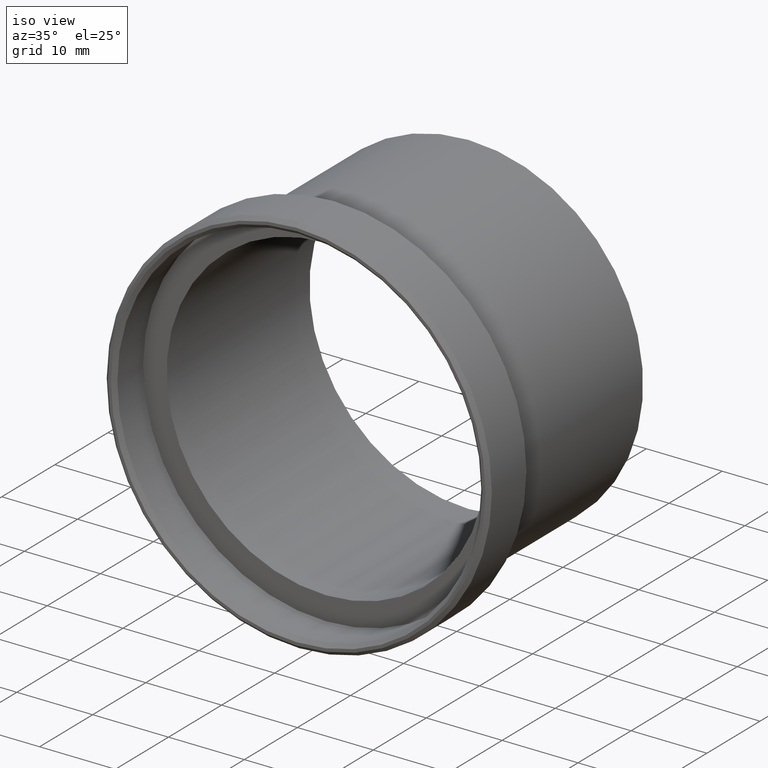
[diagram: clean part render]
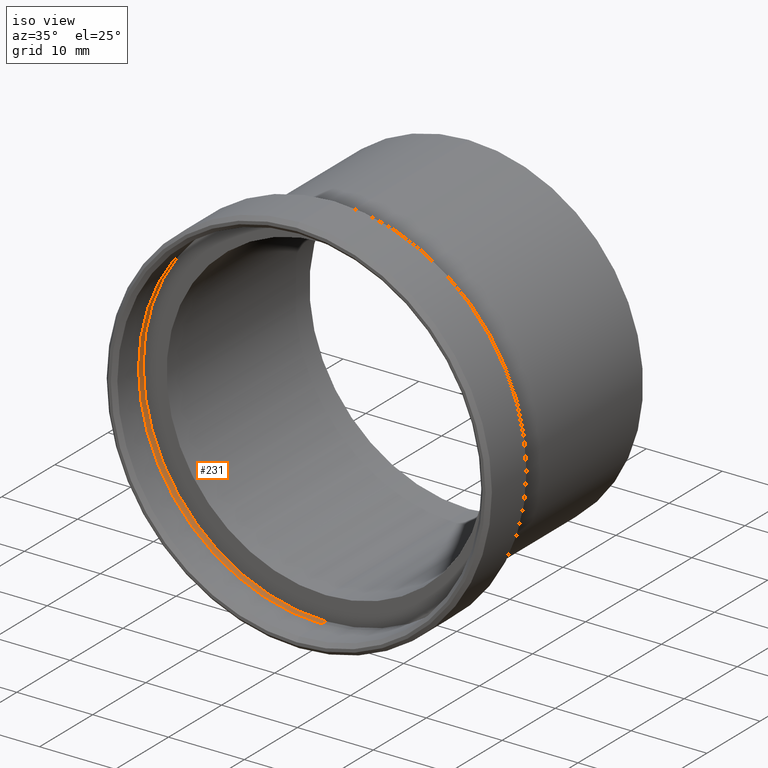
[diagram: same view with one face highlighted and labeled with its STEP entity id]
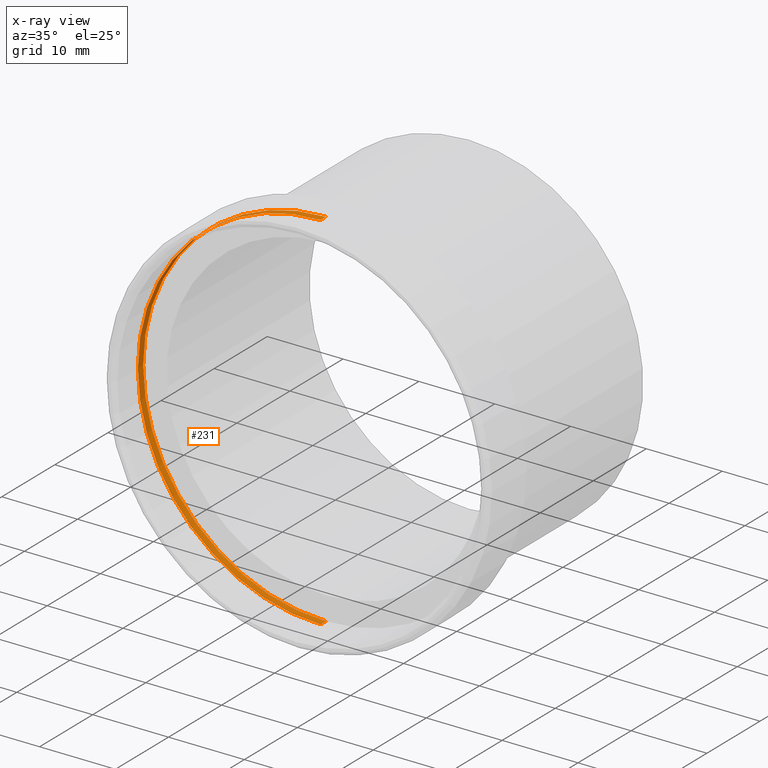
[diagram: x-ray of the same camera — body ghosted, the highlighted face saturated]
A machine part, iso view. The second image highlights one B-rep face of the part: STEP entity #231.
The next image is the same camera in x-ray: the body ghosted, the highlighted face saturated — about 0% of this face is hidden behind the body in this view.
In plain terms, the highlighted cylindrical surface (partial cylindrical patch) has radius 24.1 mm, axis along (-0, 1, -0).
Its self-contained STEP definition (entity closure, byte-faithful):
#59 = DIRECTION ( 'NONE',  ( 0.0000000000000000000, 0.0000000000000000000, 1.000000000000000000 ) ) ;
#69 = DIRECTION ( 'NONE',  ( 0.0000000000000000000, 0.0000000000000000000, 1.000000000000000000 ) ) ;
#71 = EDGE_CURVE ( 'NONE', #516, #353, #651, .T. ) ;
#79 = VECTOR ( 'NONE', #602, 1000.000000000000000 ) ;
#106 = ORIENTED_EDGE ( 'NONE', *, *, #627, .T. ) ;
#126 = DIRECTION ( 'NONE',  ( -0.0000000000000000000, 1.000000000000000000, -0.0000000000000000000 ) ) ;
#134 = DIRECTION ( 'NONE',  ( -0.0000000000000000000, 1.000000000000000000, -0.0000000000000000000 ) ) ;
#146 = DIRECTION ( 'NONE',  ( -0.0000000000000000000, 1.000000000000000000, -0.0000000000000000000 ) ) ;
#154 = CARTESIAN_POINT ( 'NONE',  ( 2.951398785945122000E-015, 44.59859774529311900, -24.10000000000000900 ) ) ;
#184 = LINE ( 'NONE', #154, #748 ) ;
#185 = ORIENTED_EDGE ( 'NONE', *, *, #632, .F. ) ;
#196 = CARTESIAN_POINT ( 'NONE',  ( 0.0000000000000000000, -1.357145825433107900, 0.0000000000000000000 ) ) ;
#231 = ADVANCED_FACE ( 'NONE', ( #661 ), #763, .F. ) ;
#332 = DIRECTION ( 'NONE',  ( 0.0000000000000000000, 0.0000000000000000000, 1.000000000000000000 ) ) ;
#353 = VERTEX_POINT ( 'NONE', #687 ) ;
#354 = VERTEX_POINT ( 'NONE', #762 ) ;
#439 = AXIS2_PLACEMENT_3D ( 'NONE', #675, #126, #59 ) ;
#442 = ORIENTED_EDGE ( 'NONE', *, *, #834, .T. ) ;
#516 = VERTEX_POINT ( 'NONE', #795 ) ;
#526 = CARTESIAN_POINT ( 'NONE',  ( 0.0000000000000000000, 44.59859774529311900, 24.10000000000000900 ) ) ;
#564 = DIRECTION ( 'NONE',  ( -0.0000000000000000000, 1.000000000000000000, -0.0000000000000000000 ) ) ;
#566 = EDGE_LOOP ( 'NONE', ( #185, #442, #106, #701 ) ) ;
#583 = VERTEX_POINT ( 'NONE', #833 ) ;
#602 = DIRECTION ( 'NONE',  ( -0.0000000000000000000, 1.000000000000000000, -0.0000000000000000000 ) ) ;
#617 = CIRCLE ( 'NONE', #695, 24.10000000000000900 ) ;
#627 = EDGE_CURVE ( 'NONE', #354, #353, #617, .T. ) ;
#628 = CARTESIAN_POINT ( 'NONE',  ( 0.0000000000000000000, -0.3571458254331069700, 0.0000000000000000000 ) ) ;
#632 = EDGE_CURVE ( 'NONE', #583, #516, #709, .T. ) ;
#651 = LINE ( 'NONE', #526, #79 ) ;
#661 = FACE_OUTER_BOUND ( 'NONE', #566, .T. ) ;
#675 = CARTESIAN_POINT ( 'NONE',  ( 0.0000000000000000000, 44.59859774529311900, 0.0000000000000000000 ) ) ;
#687 = CARTESIAN_POINT ( 'NONE',  ( 0.0000000000000000000, -0.3571458254331069700, 24.10000000000000900 ) ) ;
#695 = AXIS2_PLACEMENT_3D ( 'NONE', #628, #146, #332 ) ;
#701 = ORIENTED_EDGE ( 'NONE', *, *, #71, .F. ) ;
#709 = CIRCLE ( 'NONE', #893, 24.10000000000000900 ) ;
#748 = VECTOR ( 'NONE', #564, 1000.000000000000000 ) ;
#762 = CARTESIAN_POINT ( 'NONE',  ( 2.951398785945122000E-015, -0.3571458254331069700, -24.10000000000000900 ) ) ;
#763 = CYLINDRICAL_SURFACE ( 'NONE', #439, 24.10000000000000900 ) ;
#795 = CARTESIAN_POINT ( 'NONE',  ( 0.0000000000000000000, -1.357145825433107900, 24.10000000000000900 ) ) ;
#833 = CARTESIAN_POINT ( 'NONE',  ( 2.951398785945122000E-015, -1.357145825433107900, -24.10000000000000900 ) ) ;
#834 = EDGE_CURVE ( 'NONE', #583, #354, #184, .T. ) ;
#893 = AXIS2_PLACEMENT_3D ( 'NONE', #196, #134, #69 ) ;